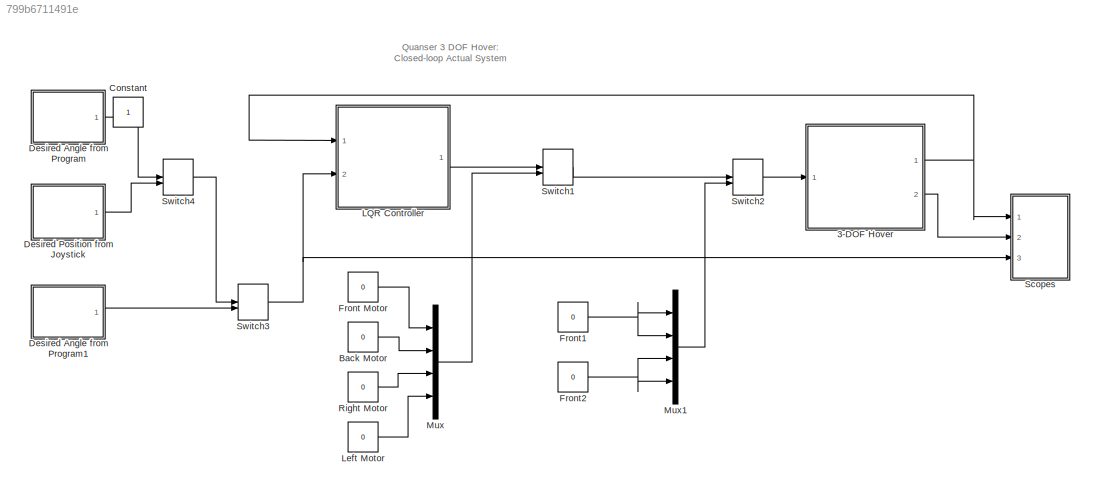
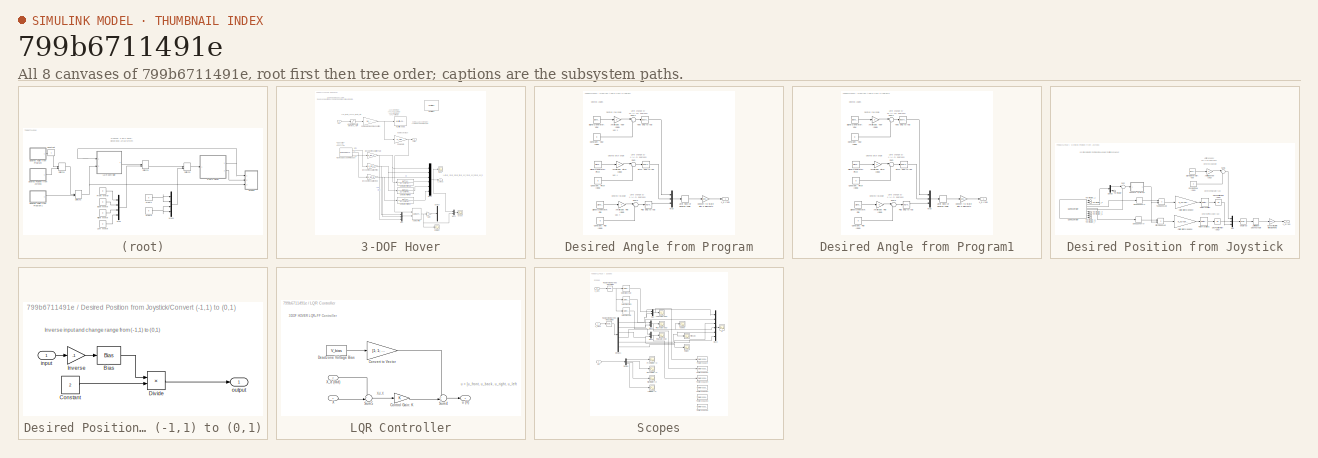
[diagram: thumbnail index - all 8 canvases of the model, root first then tree order]
MODEL slx_799b6711491e
KIND model
CONFIG AbsTol = auto
CONFIG FixedStep = 0.002
CONFIG MaxStep = auto
CONFIG MinStep = auto
CONFIG RelTol = 1e-3
CONFIG SampleTimeConstraint = Unconstrained
CONFIG Solver = ode1
CONFIG SolverMode = Auto
CONFIG SolverName = ode1
CONFIG StartTime = 0.0
CONFIG StopTime = inf
BLOCK [SubSystem] 3-DOF Hover
  Ports = [1, 2]
  RequestExecContextInheritance = off
  Variant = off
BLOCK [Gain] 3-DOF Hover/Cable Gain
  Gain = K_AMP
  Multiplication = Matrix(K*u)
BLOCK [Gain] 3-DOF Hover/Cable Gain Pre-Compensation
  Gain = 1 / K_AMP
  Multiplication = Matrix(K*u)
BLOCK [Demux] 3-DOF Hover/Demux
  Commented = on
  DisplayOption = bar
  Outputs = 6
  Ports = [1, 6]
BLOCK [TransferFcn] 3-DOF Hover/Derivative Filter: Pitch
  Denominator = [1 2*zetaf*wcf wcf^2]
  Numerator = [wcf^2 0]
BLOCK [TransferFcn] 3-DOF Hover/Derivative Filter: Roll
  Denominator = [1 2*zetaf*wcf wcf^2]
  Numerator = [wcf^2 0]
BLOCK [TransferFcn] 3-DOF Hover/Derivative Filter: Yaw
  Denominator = [1 2*zetaf*wcf wcf^2]
  Numerator = [wcf^2 0]
BLOCK [Gain] 3-DOF Hover/Encoder Resolution: Pitch
  Gain = K_EC_P
  OutDataTypeStr = Inherit: Inherit via internal rule
  ParamDataTypeStr = Inherit: Inherit via internal rule
  SaturateOnIntegerOverflow = off
BLOCK [Gain] 3-DOF Hover/Encoder Resolution: Roll 
  Gain = K_EC_R
  OutDataTypeStr = Inherit: Inherit via internal rule
  ParamDataTypeStr = Inherit: Inherit via internal rule
  SaturateOnIntegerOverflow = off
BLOCK [Gain] 3-DOF Hover/Encoder Resolution: Yaw
  Gain = K_EC_Y
  OutDataTypeStr = Inherit: Inherit via internal rule
  ParamDataTypeStr = Inherit: Inherit via internal rule
  SaturateOnIntegerOverflow = off
BLOCK [Gain] 3-DOF Hover/Gain
  Gain = -1
  OutDataTypeStr = Inherit: Inherit via internal rule
  ParamDataTypeStr = Inherit: Inherit via internal rule
  SaturateOnIntegerOverflow = off
BLOCK [Reference] 3-DOF Hover/HIL Initialize  REF=quarc_library/Data Acquisition/Generic/Configuration/HIL Initialize
  AttributesFormatString = %<object_name> (%<board_type>-%<board_number>)
  Ports = []
  SourceBlock = quarc_library/Data Acquisition/Generic/Configuration/HIL Initialize
  SourceType = HIL Initialize
  UserDataPersistent = on
BLOCK [Reference] 3-DOF Hover/HIL Read Encoder Timebase  REF=quarc_library/Data Acquisition/Generic/Timebases/HIL Read Encoder
Timebase
  AttributesFormatString = (%<object_name>)
  Ports = [0, 3]
  SourceBlock = quarc_library/Data Acquisition/Generic/Timebases/HIL Read Encoder\nTimebase
  SourceType = HIL Read Encoder Timebase
  UserDataPersistent = on
BLOCK [Reference] 3-DOF Hover/HIL Write Analog  REF=quarc_library/Data Acquisition/Generic/Immediate I//O/HIL Write Analog
  AttributesFormatString = (%<object_name>)
  Ports = [1]
  SourceBlock = quarc_library/Data Acquisition/Generic/Immediate I//O/HIL Write Analog
  SourceType = HIL Write Analog
  UserDataPersistent = on
BLOCK [Scope] 3-DOF Hover/Kalman
  Ports = [1]
  ScopeSpecificationString = Simulink.scopes.TimeScopeBlockCfg('CurrentConfiguration', extmgr.ConfigurationSet(extmgr.Configuration('Core','General UI',true),extmgr.Configuration('Core','Source UI',true),extmgr.Configuration('Sources','WiredSimulink',true,'DataLoggingVariableName','ScopeData2'),extmgr.Configuration('Visuals','Time Domain',true,'SerializedDisplays',{struct('MinYLimReal','-0.42066','MaxYLimReal','0.49175','YLab...<+1534ch>
BLOCK [Reference] 3-DOF Hover/Kalman Filter  REF=ctrlSharedLib/Kalman Filter
  Ports = [2, 1]
  SourceBlock = ctrlSharedLib/Kalman Filter
  SourceType = ctrlKalmanFilter
BLOCK [Mux] 3-DOF Hover/Mux
  DisplayOption = bar
  Inputs = 3
  Ports = [3, 1]
BLOCK [Mux] 3-DOF Hover/Mux1
  DisplayOption = bar
  Inputs = 6
  Ports = [6, 1]
BLOCK [Mux] 3-DOF Hover/Mux2
  DisplayOption = bar
  Inputs = 2
  Ports = [2, 1]
BLOCK [Scope] 3-DOF Hover/Real
  Ports = [1]
  ScopeSpecificationString = Simulink.scopes.TimeScopeBlockCfg('CurrentConfiguration', extmgr.ConfigurationSet(extmgr.Configuration('Core','General UI',true),extmgr.Configuration('Core','Source UI',true),extmgr.Configuration('Sources','WiredSimulink',true,'DataLoggingVariableName','ScopeData3'),extmgr.Configuration('Visuals','Time Domain',true,'SerializedDisplays',{struct('MinYLimReal','-0.35608','MaxYLimReal','0.56933','YLab...<+1526ch>
BLOCK [Scope] 3-DOF Hover/Scope
  Ports = [1]
  ScopeSpecificationString = Simulink.scopes.TimeScopeBlockCfg('CurrentConfiguration', extmgr.ConfigurationSet(extmgr.Configuration('Core','General UI',true),extmgr.Configuration('Core','Source UI',true),extmgr.Configuration('Sources','WiredSimulink',true,'DataLoggingVariableName','ScopeData1'),extmgr.Configuration('Visuals','Time Domain',true,'SerializedDisplays',{struct('MinYLimReal','-0.95534','MaxYLimReal','0.84381','YLab...<+1662ch>
BLOCK [Saturate] 3-DOF Hover/UPM Voltage Limit: 0 to VMAX_AMP
  InputPortMap = u0
  LowerLimit = 0
  Ports = [1, 1]
  UpperLimit = VMAX_AMP
BLOCK [Outport] 3-DOF Hover/Vm (V)
  IconDisplay = Port number
  Port = 2
BLOCK [Outport] 3-DOF Hover/X_meas
  IconDisplay = Port number
BLOCK [Inport] 3-DOF Hover/u (V)
  IconDisplay = Port number
BLOCK [Constant] Back Motor
  Value = 0
BLOCK [Constant] Constant
  IOType = siggen
BLOCK [SubSystem] Desired Angle from Program
  Ports = [0, 1]
  RequestExecContextInheritance = off
  Variant = off
BLOCK [Gain] Desired Angle from Program/Amplitude: Pitch (deg)
  Gain = 4
  OutDataTypeStr = Inherit: Inherit via internal rule
  ParamDataTypeStr = Inherit: Inherit via internal rule
  SaturateOnIntegerOverflow = off
BLOCK [Gain] Desired Angle from Program/Amplitude: Roll (deg)
  Gain = 4
  OutDataTypeStr = Inherit: Inherit via internal rule
  ParamDataTypeStr = Inherit: Inherit via internal rule
  SaturateOnIntegerOverflow = off
BLOCK [Gain] Desired Angle from Program/Amplitude: Yaw (deg)
  Gain = 5
  OutDataTypeStr = Inherit: Inherit via internal rule
  ParamDataTypeStr = Inherit: Inherit via internal rule
  SaturateOnIntegerOverflow = off
BLOCK [Constant] Desired Angle from Program/Constant: Pitch (deg)
  Value = 0
BLOCK [Constant] Desired Angle from Program/Constant: Roll (deg)
  Value = 0
BLOCK [Constant] Desired Angle from Program/Constant: Yaw (deg)
  Value = 0
BLOCK [Gain] Desired Angle from Program/Convert to State with 6 Elements
  Gain = [1 0 0; 0 1 0; 0 0 1; 0 0 0; 0 0 0; 0 0 0];
  Multiplication = Matrix(K*u)
  OutDataTypeStr = Inherit: Inherit via internal rule
  ParamDataTypeStr = Inherit: Inherit via internal rule
  SaturateOnIntegerOverflow = off
BLOCK [RateLimiter] Desired Angle from Program/Limit Rate of Desired Angle
  FallingSlewLimit = -CMD_RATE_LIMIT
  RisingSlewLimit = CMD_RATE_LIMIT
BLOCK [Mux] Desired Angle from Program/Mux
  DisplayOption = bar
  Inputs = 3
  Ports = [3, 1]
BLOCK [Reference] Desired Angle from Program/Pitch: deg to rad  REF=simulink_extras/Transformations/Degrees to
Radians
  Ports = [1, 1]
  SourceBlock = simulink_extras/Transformations/Degrees to\nRadians
  SourceType = DegreesToRadians
BLOCK [Reference] Desired Angle from Program/Roll: deg to rad  REF=simulink_extras/Transformations/Degrees to
Radians
  Ports = [1, 1]
  SourceBlock = simulink_extras/Transformations/Degrees to\nRadians
  SourceType = DegreesToRadians
BLOCK [SignalGenerator] Desired Angle from Program/Signal Generator: Pitch
  Frequency = 0.05
  Ports = [0, 1]
  WaveForm = square
BLOCK [SignalGenerator] Desired Angle from Program/Signal Generator: Roll
  Frequency = 0.05
  Ports = [0, 1]
  WaveForm = square
BLOCK [SignalGenerator] Desired Angle from Program/Signal Generator: Yaw
  Frequency = 0.05
  Ports = [0, 1]
  WaveForm = square
BLOCK [Sum] Desired Angle from Program/Sum
  IconShape = round
  InputSameDT = off
  Inputs = |++
  OutDataTypeStr = Inherit: Inherit via internal rule
  Ports = [2, 1]
  SaturateOnIntegerOverflow = off
BLOCK [Sum] Desired Angle from Program/Sum1
  IconShape = round
  InputSameDT = off
  Inputs = |++
  OutDataTypeStr = Inherit: Inherit via internal rule
  Ports = [2, 1]
  SaturateOnIntegerOverflow = off
BLOCK [Sum] Desired Angle from Program/Sum2
  IconShape = round
  InputSameDT = off
  Inputs = |++
  OutDataTypeStr = Inherit: Inherit via internal rule
  Ports = [2, 1]
  SaturateOnIntegerOverflow = off
BLOCK [Reference] Desired Angle from Program/Yaw: deg to rad  REF=simulink_extras/Transformations/Degrees to
Radians
  Ports = [1, 1]
  SourceBlock = simulink_extras/Transformations/Degrees to\nRadians
  SourceType = DegreesToRadians
BLOCK [Outport] Desired Angle from Program/x_d (rad)
  IconDisplay = Port number
BLOCK [SubSystem] Desired Angle from Program1
  Ports = [0, 1]
  RequestExecContextInheritance = off
  Variant = off
BLOCK [Gain] Desired Angle from Program1/Amplitude: Pitch (deg)
  Gain = 0
  OutDataTypeStr = Inherit: Inherit via internal rule
  ParamDataTypeStr = Inherit: Inherit via internal rule
  SaturateOnIntegerOverflow = off
BLOCK [Gain] Desired Angle from Program1/Amplitude: Roll (deg)
  Gain = 0
  OutDataTypeStr = Inherit: Inherit via internal rule
  ParamDataTypeStr = Inherit: Inherit via internal rule
  SaturateOnIntegerOverflow = off
BLOCK [Gain] Desired Angle from Program1/Amplitude: Yaw (deg)
  Gain = 0
  OutDataTypeStr = Inherit: Inherit via internal rule
  ParamDataTypeStr = Inherit: Inherit via internal rule
  SaturateOnIntegerOverflow = off
BLOCK [Constant] Desired Angle from Program1/Constant: Pitch (deg)
  Value = 0
BLOCK [Constant] Desired Angle from Program1/Constant: Roll (deg)
  Value = 0
BLOCK [Constant] Desired Angle from Program1/Constant: Yaw (deg)
  Value = 0
BLOCK [Gain] Desired Angle from Program1/Convert to State with 6 Elements
  Gain = [1 0 0; 0 1 0; 0 0 1; 0 0 0; 0 0 0; 0 0 0];
  Multiplication = Matrix(K*u)
  OutDataTypeStr = Inherit: Inherit via internal rule
  ParamDataTypeStr = Inherit: Inherit via internal rule
  SaturateOnIntegerOverflow = off
BLOCK [RateLimiter] Desired Angle from Program1/Limit Rate of Desired Angle
  FallingSlewLimit = -CMD_RATE_LIMIT
  RisingSlewLimit = CMD_RATE_LIMIT
BLOCK [Mux] Desired Angle from Program1/Mux
  DisplayOption = bar
  Inputs = 3
  Ports = [3, 1]
BLOCK [Reference] Desired Angle from Program1/Pitch: deg to rad  REF=simulink_extras/Transformations/Degrees to
Radians
  Ports = [1, 1]
  SourceBlock = simulink_extras/Transformations/Degrees to\nRadians
  SourceType = DegreesToRadians
BLOCK [Reference] Desired Angle from Program1/Roll: deg to rad  REF=simulink_extras/Transformations/Degrees to
Radians
  Ports = [1, 1]
  SourceBlock = simulink_extras/Transformations/Degrees to\nRadians
  SourceType = DegreesToRadians
BLOCK [SignalGenerator] Desired Angle from Program1/Signal Generator: Pitch
  Frequency = 0.1
  Ports = [0, 1]
  WaveForm = square
BLOCK [SignalGenerator] Desired Angle from Program1/Signal Generator: Roll
  Frequency = 0.1
  Ports = [0, 1]
  WaveForm = square
BLOCK [SignalGenerator] Desired Angle from Program1/Signal Generator: Yaw
  Frequency = 0.25
  Ports = [0, 1]
  WaveForm = square
BLOCK [Sum] Desired Angle from Program1/Sum
  IconShape = round
  InputSameDT = off
  Inputs = |++
  OutDataTypeStr = Inherit: Inherit via internal rule
  Ports = [2, 1]
  SaturateOnIntegerOverflow = off
BLOCK [Sum] Desired Angle from Program1/Sum1
  IconShape = round
  InputSameDT = off
  Inputs = |++
  OutDataTypeStr = Inherit: Inherit via internal rule
  Ports = [2, 1]
  SaturateOnIntegerOverflow = off
BLOCK [Sum] Desired Angle from Program1/Sum2
  IconShape = round
  InputSameDT = off
  Inputs = |++
  OutDataTypeStr = Inherit: Inherit via internal rule
  Ports = [2, 1]
  SaturateOnIntegerOverflow = off
BLOCK [Reference] Desired Angle from Program1/Yaw: deg to rad  REF=simulink_extras/Transformations/Degrees to
Radians
  Ports = [1, 1]
  SourceBlock = simulink_extras/Transformations/Degrees to\nRadians
  SourceType = DegreesToRadians
BLOCK [Outport] Desired Angle from Program1/x_d (rad)
  IconDisplay = Port number
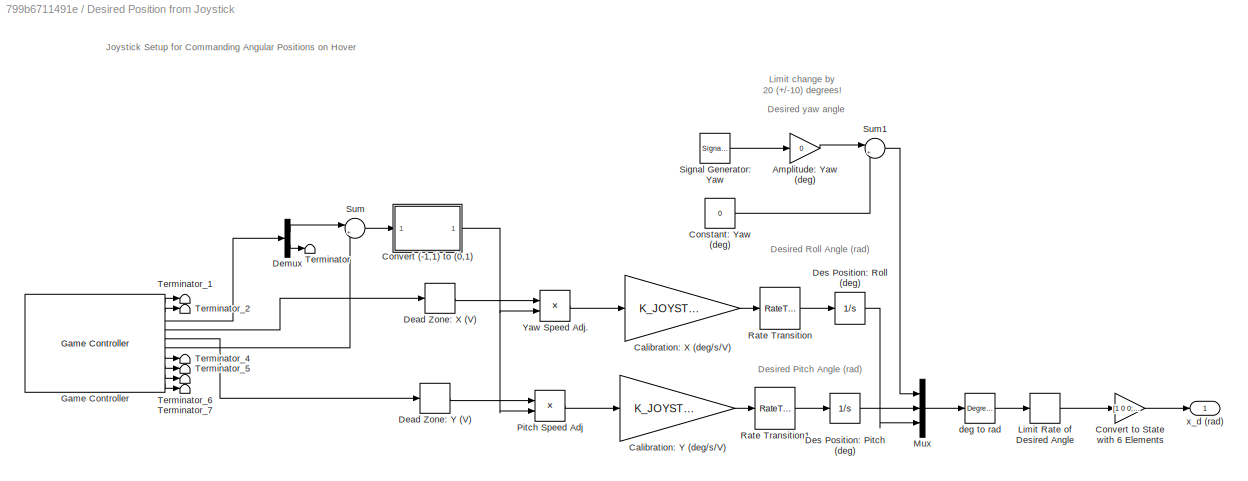
BLOCK [SubSystem] Desired Position from Joystick
  Ports = [0, 1]
  RequestExecContextInheritance = off
  Variant = off
BLOCK [Gain] Desired Position from Joystick/Amplitude: Yaw (deg)
  Gain = 0
  OutDataTypeStr = Inherit: Inherit via internal rule
  ParamDataTypeStr = Inherit: Inherit via internal rule
  SaturateOnIntegerOverflow = off
BLOCK [Gain] Desired Position from Joystick/Calibration: X (deg//s//V)
  Gain = K_JOYSTICK_X
  OutDataTypeStr = Inherit: Inherit via internal rule
  ParamDataTypeStr = Inherit: Inherit via internal rule
  SaturateOnIntegerOverflow = off
BLOCK [Gain] Desired Position from Joystick/Calibration: Y (deg//s//V)
  Gain = K_JOYSTICK_Y
  OutDataTypeStr = Inherit: Inherit via internal rule
  ParamDataTypeStr = Inherit: Inherit via internal rule
  SaturateOnIntegerOverflow = off
BLOCK [Constant] Desired Position from Joystick/Constant: Yaw (deg)
  Value = 0
BLOCK [SubSystem] Desired Position from Joystick/Convert (-1,1) to (0,1)
  Ports = [1, 1]
  RequestExecContextInheritance = off
  Variant = off
BLOCK [Bias] Desired Position from Joystick/Convert (-1,1) to (0,1)/Bias
  Bias = 1
  SaturateOnIntegerOverflow = off
BLOCK [Constant] Desired Position from Joystick/Convert (-1,1) to (0,1)/Constant
  Value = 2
BLOCK [Product] Desired Position from Joystick/Convert (-1,1) to (0,1)/Divide
  InputSameDT = off
  Inputs = */
  OutDataTypeStr = Inherit: Inherit via internal rule
  Ports = [2, 1]
  RndMeth = Floor
  SaturateOnIntegerOverflow = off
BLOCK [Gain] Desired Position from Joystick/Convert (-1,1) to (0,1)/Inverse
  Gain = -1
  OutDataTypeStr = Inherit: Inherit via internal rule
  ParamDataTypeStr = Inherit: Inherit via internal rule
  SaturateOnIntegerOverflow = off
BLOCK [Inport] Desired Position from Joystick/Convert (-1,1) to (0,1)/input
  IconDisplay = Port number
BLOCK [Outport] Desired Position from Joystick/Convert (-1,1) to (0,1)/output
  IconDisplay = Port number
BLOCK [Gain] Desired Position from Joystick/Convert to State with 6 Elements
  Gain = [1 0 0; 0 1 0; 0 0 1; 0 0 0; 0 0 0; 0 0 0];
  Multiplication = Matrix(K*u)
  OutDataTypeStr = Inherit: Inherit via internal rule
  ParamDataTypeStr = Inherit: Inherit via internal rule
  SaturateOnIntegerOverflow = off
BLOCK [DeadZone] Desired Position from Joystick/Dead Zone: X (V)
  LowerValue = -JOYSTICK_X_DZ
  UpperValue = JOYSTICK_X_DZ
BLOCK [DeadZone] Desired Position from Joystick/Dead Zone: Y (V)
  LowerValue = -JOYSTICK_Y_DZ
  UpperValue = JOYSTICK_Y_DZ
BLOCK [Demux] Desired Position from Joystick/Demux
  DisplayOption = bar
  Outputs = 2
  Ports = [1, 2]
BLOCK [Integrator] Desired Position from Joystick/Des Position: Pitch (deg)
  LimitOutput = on
  LowerSaturationLimit = INT_JOYSTICK_SAT_LOWER
  Ports = [1, 1]
  UpperSaturationLimit = INT_JOYSTICK_SAT_UPPER
BLOCK [Integrator] Desired Position from Joystick/Des Position: Roll (deg)
  LimitOutput = on
  LowerSaturationLimit = INT_JOYSTICK_SAT_LOWER
  Ports = [1, 1]
  UpperSaturationLimit = INT_JOYSTICK_SAT_UPPER
BLOCK [Reference] Desired Position from Joystick/Game Controller  REF=quarc_library/Devices/Peripherals/Target/Game Controller
  Ports = [0, 10]
  SourceBlock = quarc_library/Devices/Peripherals/Target/Game Controller
  SourceType = Game Controller
BLOCK [RateLimiter] Desired Position from Joystick/Limit Rate of Desired Angle
  FallingSlewLimit = -CMD_RATE_LIMIT
  RisingSlewLimit = CMD_RATE_LIMIT
BLOCK [Mux] Desired Position from Joystick/Mux
  DisplayOption = bar
  Inputs = 3
  Ports = [3, 1]
BLOCK [Product] Desired Position from Joystick/Pitch Speed Adj
  InputSameDT = off
  OutDataTypeStr = Inherit: Inherit via internal rule
  Ports = [2, 1]
  SaturateOnIntegerOverflow = off
BLOCK [RateTransition] Desired Position from Joystick/Rate Transition
BLOCK [RateTransition] Desired Position from Joystick/Rate Transition1
BLOCK [SignalGenerator] Desired Position from Joystick/Signal Generator: Yaw
  Frequency = 0.04
  Ports = [0, 1]
  WaveForm = square
BLOCK [Sum] Desired Position from Joystick/Sum
  IconShape = round
  InputSameDT = off
  Inputs = |++
  OutDataTypeStr = Inherit: Inherit via internal rule
  Ports = [2, 1]
  SaturateOnIntegerOverflow = off
BLOCK [Sum] Desired Position from Joystick/Sum1
  IconShape = round
  InputSameDT = off
  Inputs = |++
  OutDataTypeStr = Inherit: Inherit via internal rule
  Ports = [2, 1]
  SaturateOnIntegerOverflow = off
BLOCK [Terminator] Desired Position from Joystick/Terminator
BLOCK [Terminator] Desired Position from Joystick/Terminator_1
BLOCK [Terminator] Desired Position from Joystick/Terminator_2
BLOCK [Terminator] Desired Position from Joystick/Terminator_4
BLOCK [Terminator] Desired Position from Joystick/Terminator_5
BLOCK [Terminator] Desired Position from Joystick/Terminator_6
BLOCK [Terminator] Desired Position from Joystick/Terminator_7
BLOCK [Product] Desired Position from Joystick/Yaw Speed Adj.
  InputSameDT = off
  OutDataTypeStr = Inherit: Inherit via internal rule
  Ports = [2, 1]
  SaturateOnIntegerOverflow = off
BLOCK [Reference] Desired Position from Joystick/deg to rad  REF=simulink_extras/Transformations/Degrees to
Radians
  Ports = [1, 1]
  SourceBlock = simulink_extras/Transformations/Degrees to\nRadians
  SourceType = DegreesToRadians
BLOCK [Outport] Desired Position from Joystick/x_d (rad)
  IconDisplay = Port number
BLOCK [Constant] Front Motor
  Value = 0
BLOCK [Constant] Front1
  Value = 0
BLOCK [Constant] Front2
  Value = 0
BLOCK [SubSystem] LQR Controller
  Ports = [2, 1]
  RequestExecContextInheritance = off
  Variant = off
BLOCK [Gain] LQR Controller/Control Gain: K
  Gain = K
  Multiplication = Matrix(K*u)
  OutDataTypeStr = Inherit: Inherit via internal rule
  ParamDataTypeStr = Inherit: Inherit via internal rule
  SaturateOnIntegerOverflow = off
BLOCK [Gain] LQR Controller/Convert to Vector
  Gain = [1; 1; 1; 1]
  Multiplication = Matrix(K*u)
  OutDataTypeStr = Inherit: Inherit via internal rule
  ParamDataTypeStr = Inherit: Inherit via internal rule
  SaturateOnIntegerOverflow = off
BLOCK [Constant] LQR Controller/Deadzone Voltage Bias
  Value = V_bias
BLOCK [Sum] LQR Controller/Sum4
  IconShape = round
  InputSameDT = off
  Inputs = ++|
  OutDataTypeStr = Inherit: Inherit via internal rule
  Ports = [2, 1]
  SaturateOnIntegerOverflow = off
BLOCK [Sum] LQR Controller/Sum5
  IconShape = round
  InputSameDT = off
  Inputs = +-|
  OutDataTypeStr = Inherit: Inherit via internal rule
  Ports = [2, 1]
  SaturateOnIntegerOverflow = off
BLOCK [Inport] LQR Controller/X
  IconDisplay = Port number
BLOCK [Inport] LQR Controller/X_d (rad)
  IconDisplay = Port number
  Port = 2
BLOCK [Outport] LQR Controller/u (V)
  IconDisplay = Port number
BLOCK [Constant] Left Motor
  Value = 0
BLOCK [Mux] Mux
  DisplayOption = bar
  Ports = [4, 1]
BLOCK [Mux] Mux1
  DisplayOption = bar
  Ports = [4, 1]
BLOCK [Constant] Right Motor
  Value = 0
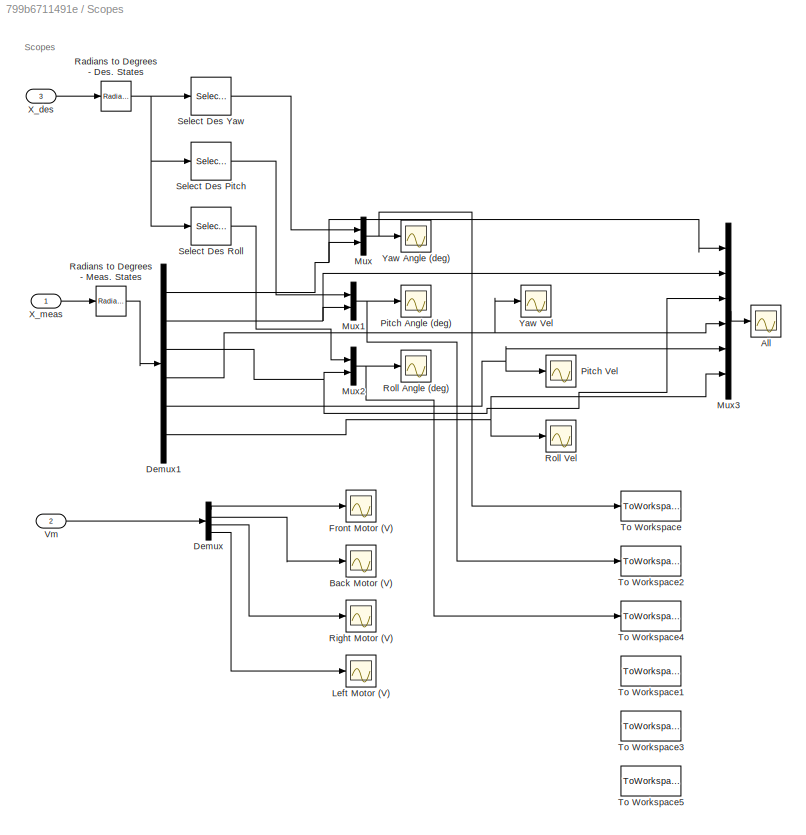
BLOCK [SubSystem] Scopes
  Ports = [3]
  RequestExecContextInheritance = off
  Variant = off
BLOCK [Scope] Scopes/All
  Ports = [1]
  ScopeSpecificationString = Simulink.scopes.TimeScopeBlockCfg('CurrentConfiguration', extmgr.ConfigurationSet(extmgr.Configuration('Core','General UI',true),extmgr.Configuration('Core','Source UI',true),extmgr.Configuration('Sources','WiredSimulink',true,'DataLogging',true,'DataLoggingVariableName','ScopeData4','DataLoggingMaxPoints','10000','DataLoggingLimitDataPoints',true,'DataLoggingSaveFormat','Array','DataLoggingDecima...<+1826ch>
BLOCK [Scope] Scopes/Back Motor (V)
  Ports = [1]
  ScopeSpecificationString = Simulink.scopes.TimeScopeBlockCfg('CurrentConfiguration', extmgr.ConfigurationSet(extmgr.Configuration('Core','General UI',true),extmgr.Configuration('Core','Source UI',true),extmgr.Configuration('Sources','WiredSimulink',true,'DataLogging',true,'DataLoggingVariableName','data_Vb','DataLoggingMaxPoints','10000','DataLoggingLimitDataPoints',true,'DataLoggingSaveFormat','Array','DataLoggingDecimatio...<+1739ch>
BLOCK [Demux] Scopes/Demux
  DisplayOption = bar
  Ports = [1, 4]
BLOCK [Demux] Scopes/Demux1
  DisplayOption = bar
  Outputs = 6
  Ports = [1, 6]
BLOCK [Scope] Scopes/Front Motor (V)
  Ports = [1]
  ScopeSpecificationString = Simulink.scopes.TimeScopeBlockCfg('CurrentConfiguration', extmgr.ConfigurationSet(extmgr.Configuration('Core','General UI',true),extmgr.Configuration('Core','Source UI',true),extmgr.Configuration('Sources','WiredSimulink',true,'DataLogging',true,'DataLoggingVariableName','data_Vf','DataLoggingMaxPoints','10000','DataLoggingLimitDataPoints',true,'DataLoggingSaveFormat','Array','DataLoggingDecimatio...<+1738ch>
BLOCK [Scope] Scopes/Left Motor (V)
  Ports = [1]
  ScopeSpecificationString = Simulink.scopes.TimeScopeBlockCfg('CurrentConfiguration', extmgr.ConfigurationSet(extmgr.Configuration('Core','General UI',true),extmgr.Configuration('Core','Source UI',true),extmgr.Configuration('Sources','WiredSimulink',true,'DataLogging',true,'DataLoggingVariableName','data_Vl','DataLoggingMaxPoints','10000','DataLoggingLimitDataPoints',true,'DataLoggingSaveFormat','Array','DataLoggingDecimatio...<+1784ch>
BLOCK [Mux] Scopes/Mux
  DisplayOption = bar
  Inputs = 2
  Ports = [2, 1]
BLOCK [Mux] Scopes/Mux1
  DisplayOption = bar
  Inputs = 2
  Ports = [2, 1]
BLOCK [Mux] Scopes/Mux2
  DisplayOption = bar
  Inputs = 2
  Ports = [2, 1]
BLOCK [Mux] Scopes/Mux3
  DisplayOption = bar
  Inputs = 6
  Ports = [6, 1]
BLOCK [Scope] Scopes/Pitch Angle (deg)
  Ports = [1]
  ScopeSpecificationString = Simulink.scopes.TimeScopeBlockCfg('CurrentConfiguration', extmgr.ConfigurationSet(extmgr.Configuration('Core','General UI',true),extmgr.Configuration('Core','Source UI',true),extmgr.Configuration('Sources','WiredSimulink',true,'DataLogging',true,'DataLoggingVariableName','data_pitch','DataLoggingMaxPoints','10000','DataLoggingLimitDataPoints',true,'DataLoggingSaveFormat','Array','DataLoggingDecima...<+1856ch>
BLOCK [Scope] Scopes/Pitch Vel
  Ports = [1]
  ScopeSpecificationString = Simulink.scopes.TimeScopeBlockCfg('CurrentConfiguration', extmgr.ConfigurationSet(extmgr.Configuration('Core','General UI',true),extmgr.Configuration('Core','Source UI',true),extmgr.Configuration('Sources','WiredSimulink',true,'DataLogging',true,'DataLoggingVariableName','ScopeData1','DataLoggingMaxPoints','10000','DataLoggingLimitDataPoints',true,'DataLoggingSaveFormat','Array','DataLoggingDecima...<+1817ch>
BLOCK [Reference] Scopes/Radians to Degrees - Des. States  REF=simulink_extras/Transformations/Radians
to Degrees
  Ports = [1, 1]
  SourceBlock = simulink_extras/Transformations/Radians\nto Degrees
  SourceType = RadiansToDegrees
BLOCK [Reference] Scopes/Radians to Degrees - Meas. States  REF=simulink_extras/Transformations/Radians
to Degrees
  Ports = [1, 1]
  SourceBlock = simulink_extras/Transformations/Radians\nto Degrees
  SourceType = RadiansToDegrees
BLOCK [Scope] Scopes/Right Motor (V)
  Ports = [1]
  ScopeSpecificationString = Simulink.scopes.TimeScopeBlockCfg('CurrentConfiguration', extmgr.ConfigurationSet(extmgr.Configuration('Core','General UI',true),extmgr.Configuration('Core','Source UI',true),extmgr.Configuration('Sources','WiredSimulink',true,'DataLogging',true,'DataLoggingVariableName','data_Vr','DataLoggingMaxPoints','10000','DataLoggingLimitDataPoints',true,'DataLoggingSaveFormat','Array','DataLoggingDecimatio...<+1786ch>
BLOCK [Scope] Scopes/Roll Angle (deg)
  Ports = [1]
  ScopeSpecificationString = Simulink.scopes.TimeScopeBlockCfg('CurrentConfiguration', extmgr.ConfigurationSet(extmgr.Configuration('Core','General UI',true),extmgr.Configuration('Core','Source UI',true),extmgr.Configuration('Sources','WiredSimulink',true,'DataLogging',true,'DataLoggingVariableName','data_roll','DataLoggingMaxPoints','10000','DataLoggingLimitDataPoints',true,'DataLoggingSaveFormat','Array','DataLoggingDecimat...<+1859ch>
BLOCK [Scope] Scopes/Roll Vel
  Ports = [1]
  ScopeSpecificationString = Simulink.scopes.TimeScopeBlockCfg('CurrentConfiguration', extmgr.ConfigurationSet(extmgr.Configuration('Core','General UI',true),extmgr.Configuration('Core','Source UI',true),extmgr.Configuration('Sources','WiredSimulink',true,'DataLogging',true,'DataLoggingVariableName','ScopeData2','DataLoggingMaxPoints','10000','DataLoggingLimitDataPoints',true,'DataLoggingSaveFormat','Array','DataLoggingDecima...<+1774ch>
BLOCK [Selector] Scopes/Select Des Pitch
  IndexOptions = Index vector (dialog)
  Indices = 2
  InputPortWidth = 6
  OutputSizes = 1
  Ports = [1, 1]
BLOCK [Selector] Scopes/Select Des Roll
  IndexOptions = Index vector (dialog)
  Indices = 3
  InputPortWidth = 6
  OutputSizes = 1
  Ports = [1, 1]
BLOCK [Selector] Scopes/Select Des Yaw
  IndexOptions = Index vector (dialog)
  Indices = 1
  InputPortWidth = 6
  OutputSizes = 1
  Ports = [1, 1]
BLOCK [ToWorkspace] Scopes/To Workspace
  FixptAsFi = on
  MaxDataPoints = inf
  Ports = [1]
  SampleTime = -1
  Save2DSignal = 2-D array (concatenate along first dimension)
  VariableName = Yaw_Angle
BLOCK [ToWorkspace] Scopes/To Workspace1
  FixptAsFi = on
  MaxDataPoints = inf
  Ports = [1]
  SampleTime = -1
  Save2DSignal = 2-D array (concatenate along first dimension)
  VariableName = Yaw_Velocity
BLOCK [ToWorkspace] Scopes/To Workspace2
  FixptAsFi = on
  MaxDataPoints = inf
  Ports = [1]
  SampleTime = -1
  Save2DSignal = 2-D array (concatenate along first dimension)
  VariableName = Pitch_Angle
BLOCK [ToWorkspace] Scopes/To Workspace3
  FixptAsFi = on
  MaxDataPoints = inf
  Ports = [1]
  SampleTime = -1
  Save2DSignal = 2-D array (concatenate along first dimension)
  VariableName = Pitch_Velocity
BLOCK [ToWorkspace] Scopes/To Workspace4
  FixptAsFi = on
  MaxDataPoints = inf
  Ports = [1]
  SampleTime = -1
  Save2DSignal = 2-D array (concatenate along first dimension)
  VariableName = Roll_Angle
BLOCK [ToWorkspace] Scopes/To Workspace5
  FixptAsFi = on
  MaxDataPoints = inf
  Ports = [1]
  SampleTime = -1
  Save2DSignal = 2-D array (concatenate along first dimension)
  VariableName = Rol_Velocity
BLOCK [Inport] Scopes/Vm
  IconDisplay = Port number
  Port = 2
BLOCK [Inport] Scopes/X_des
  IconDisplay = Port number
  Port = 3
BLOCK [Inport] Scopes/X_meas
  IconDisplay = Port number
BLOCK [Scope] Scopes/Yaw Angle (deg)
  Ports = [1]
  ScopeSpecificationString = Simulink.scopes.TimeScopeBlockCfg('CurrentConfiguration', extmgr.ConfigurationSet(extmgr.Configuration('Core','General UI',true),extmgr.Configuration('Core','Source UI',true),extmgr.Configuration('Sources','WiredSimulink',true,'DataLogging',true,'DataLoggingVariableName','data_yaw','DataLoggingMaxPoints','10000','DataLoggingLimitDataPoints',true,'DataLoggingSaveFormat','Array','DataLoggingDecimati...<+1854ch>
BLOCK [Scope] Scopes/Yaw Vel
  Ports = [1]
  ScopeSpecificationString = Simulink.scopes.TimeScopeBlockCfg('CurrentConfiguration', extmgr.ConfigurationSet(extmgr.Configuration('Core','General UI',true),extmgr.Configuration('Core','Source UI',true),extmgr.Configuration('Sources','WiredSimulink',true,'DataLogging',true,'DataLoggingVariableName','ScopeData3','DataLoggingMaxPoints','10000','DataLoggingLimitDataPoints',true,'DataLoggingSaveFormat','Array','DataLoggingDecima...<+1741ch>
BLOCK [ManualSwitch] Switch1
BLOCK [ManualSwitch] Switch2
BLOCK [ManualSwitch] Switch3
BLOCK [ManualSwitch] Switch4
ANNOTATION (root): Quanser 3 DOF Hover: Closed-loop Actual System
ANNOTATION 3-DOF Hover: 3DOF HOVER Subsystem Reads angles from encoder and applied voltage to motors.
ANNOTATION 3-DOF Hover: A0 #0 = front motor A0 #1 = back motor A0 #3 = right motor A0 #2 = left motor
ANNOTATION 3-DOF Hover: Ch #0 = pitch Ch #1 = roll Ch #2 = yaw
ANNOTATION 3-DOF Hover: Motor Input Voltage
ANNOTATION 3-DOF Hover: Note: [0,1,3,2] used to match control signal order [uf,ub,ur,ul]
ANNOTATION 3-DOF Hover: pitch
ANNOTATION 3-DOF Hover: roll
ANNOTATION 3-DOF Hover: u = [u_front, u_back, u_right, u_left]
ANNOTATION 3-DOF Hover: x = [theta_y, theta_p, theta_r, theta_dot_y, theta_dot_p, theta_dot_r, ]
ANNOTATION 3-DOF Hover: yaw
ANNOTATION Desired Angle from Program: Desired Angles
ANNOTATION Desired Angle from Program: Desired pitch angle
ANNOTATION Desired Angle from Program: Desired roll angle
ANNOTATION Desired Angle from Program: Desired yaw angle
ANNOTATION Desired Angle from Program: Limit change by 20 (+/-10) degrees!
ANNOTATION Desired Angle from Program: Limit change by 4 (+/-2) degrees!
ANNOTATION Desired Angle from Program: was 4
ANNOTATION Desired Angle from Program: was 5
ANNOTATION Desired Angle from Program1: Desired Angles
ANNOTATION Desired Angle from Program1: Desired pitch angle
ANNOTATION Desired Angle from Program1: Desired roll angle
ANNOTATION Desired Angle from Program1: Desired yaw angle
ANNOTATION Desired Angle from Program1: Limit change by 20 (+/-10) degrees!
ANNOTATION Desired Angle from Program1: Limit change by 4 (+/-2) degrees!
ANNOTATION Desired Position from Joystick: Desired Pitch Angle (rad)
ANNOTATION Desired Position from Joystick: Desired Roll Angle (rad)
ANNOTATION Desired Position from Joystick: Desired yaw angle
ANNOTATION Desired Position from Joystick: Joystick Setup for Commanding Angular Positions on Hover
ANNOTATION Desired Position from Joystick: Limit change by 20 (+/-10) degrees!
ANNOTATION Desired Position from Joystick/Convert (-1,1) to (0,1): Inverse input and change range from (-1,1) to (0,1)
ANNOTATION LQR Controller: 3DOF HOVER LQR+FF Controller
ANNOTATION LQR Controller: Xd-X
ANNOTATION LQR Controller: u = [u_front, u_back, u_right, u_left
ANNOTATION Scopes: Scopes
NET 3-DOF Hover/Cable Gain Pre-Compensation:1 -> 3-DOF Hover/Cable Gain:1, 3-DOF Hover/HIL Write Analog:1
NET 3-DOF Hover/Cable Gain:1 -> 3-DOF Hover/Kalman Filter:1, 3-DOF Hover/Vm (V):1
LINE 3-DOF Hover/Derivative Filter: Pitch:1 -> 3-DOF Hover/Mux1:5
LINE 3-DOF Hover/Derivative Filter: Roll:1 -> 3-DOF Hover/Mux1:6
LINE 3-DOF Hover/Derivative Filter: Yaw:1 -> 3-DOF Hover/Mux1:4
NET 3-DOF Hover/Encoder Resolution: Pitch:1 -> 3-DOF Hover/Derivative Filter: Pitch:1, 3-DOF Hover/Mux1:2, 3-DOF Hover/Mux:1
NET 3-DOF Hover/Encoder Resolution: Roll :1 -> 3-DOF Hover/Derivative Filter: Roll:1, 3-DOF Hover/Mux1:3, 3-DOF Hover/Mux:2
NET 3-DOF Hover/Encoder Resolution: Yaw:1 -> 3-DOF Hover/Derivative Filter: Yaw:1, 3-DOF Hover/Mux1:1, 3-DOF Hover/Mux:3
LINE 3-DOF Hover/Gain:1 -> 3-DOF Hover/Demux:1
LINE 3-DOF Hover/HIL Read Encoder Timebase:1 -> 3-DOF Hover/Encoder Resolution: Pitch:1
LINE 3-DOF Hover/HIL Read Encoder Timebase:2 -> 3-DOF Hover/Encoder Resolution: Roll :1
LINE 3-DOF Hover/HIL Read Encoder Timebase:3 -> 3-DOF Hover/Encoder Resolution: Yaw:1
NET 3-DOF Hover/Kalman Filter:1 -> 3-DOF Hover/Gain:1, 3-DOF Hover/Kalman:1, 3-DOF Hover/Mux2:2
NET 3-DOF Hover/Mux1:1 -> 3-DOF Hover/Mux2:1, 3-DOF Hover/Real:1, 3-DOF Hover/X_meas:1
LINE 3-DOF Hover/Mux2:1 -> 3-DOF Hover/Scope:1
LINE 3-DOF Hover/Mux:1 -> 3-DOF Hover/Kalman Filter:2
LINE 3-DOF Hover/UPM Voltage Limit: 0 to VMAX_AMP:1 -> 3-DOF Hover/Cable Gain Pre-Compensation:1
LINE 3-DOF Hover/u (V):1 -> 3-DOF Hover/UPM Voltage Limit: 0 to VMAX_AMP:1
NET 3-DOF Hover:1 -> LQR Controller:1, Scopes:1
LINE 3-DOF Hover:2 -> Scopes:2
LINE Back Motor:1 -> Mux:2
LINE Desired Angle from Program/Amplitude: Pitch (deg):1 -> Desired Angle from Program/Sum:1
LINE Desired Angle from Program/Amplitude: Roll (deg):1 -> Desired Angle from Program/Sum2:1
LINE Desired Angle from Program/Amplitude: Yaw (deg):1 -> Desired Angle from Program/Sum1:1
LINE Desired Angle from Program/Constant: Pitch (deg):1 -> Desired Angle from Program/Sum:2
LINE Desired Angle from Program/Constant: Roll (deg):1 -> Desired Angle from Program/Sum2:2
LINE Desired Angle from Program/Constant: Yaw (deg):1 -> Desired Angle from Program/Sum1:2
LINE Desired Angle from Program/Convert to State with 6 Elements:1 -> Desired Angle from Program/x_d (rad):1
LINE Desired Angle from Program/Limit Rate of Desired Angle:1 -> Desired Angle from Program/Convert to State with 6 Elements:1
LINE Desired Angle from Program/Mux:1 -> Desired Angle from Program/Limit Rate of Desired Angle:1
LINE Desired Angle from Program/Pitch: deg to rad:1 -> Desired Angle from Program/Mux:2
LINE Desired Angle from Program/Roll: deg to rad:1 -> Desired Angle from Program/Mux:3
LINE Desired Angle from Program/Signal Generator: Pitch:1 -> Desired Angle from Program/Amplitude: Pitch (deg):1
LINE Desired Angle from Program/Signal Generator: Roll:1 -> Desired Angle from Program/Amplitude: Roll (deg):1
LINE Desired Angle from Program/Signal Generator: Yaw:1 -> Desired Angle from Program/Amplitude: Yaw (deg):1
LINE Desired Angle from Program/Sum1:1 -> Desired Angle from Program/Yaw: deg to rad:1
LINE Desired Angle from Program/Sum2:1 -> Desired Angle from Program/Roll: deg to rad:1
LINE Desired Angle from Program/Sum:1 -> Desired Angle from Program/Pitch: deg to rad:1
LINE Desired Angle from Program/Yaw: deg to rad:1 -> Desired Angle from Program/Mux:1
LINE Desired Angle from Program1/Amplitude: Pitch (deg):1 -> Desired Angle from Program1/Sum:1
LINE Desired Angle from Program1/Amplitude: Roll (deg):1 -> Desired Angle from Program1/Sum2:1
LINE Desired Angle from Program1/Amplitude: Yaw (deg):1 -> Desired Angle from Program1/Sum1:1
LINE Desired Angle from Program1/Constant: Pitch (deg):1 -> Desired Angle from Program1/Sum:2
LINE Desired Angle from Program1/Constant: Roll (deg):1 -> Desired Angle from Program1/Sum2:2
LINE Desired Angle from Program1/Constant: Yaw (deg):1 -> Desired Angle from Program1/Sum1:2
LINE Desired Angle from Program1/Convert to State with 6 Elements:1 -> Desired Angle from Program1/x_d (rad):1
LINE Desired Angle from Program1/Limit Rate of Desired Angle:1 -> Desired Angle from Program1/Convert to State with 6 Elements:1
LINE Desired Angle from Program1/Mux:1 -> Desired Angle from Program1/Limit Rate of Desired Angle:1
LINE Desired Angle from Program1/Pitch: deg to rad:1 -> Desired Angle from Program1/Mux:2
LINE Desired Angle from Program1/Roll: deg to rad:1 -> Desired Angle from Program1/Mux:3
LINE Desired Angle from Program1/Signal Generator: Pitch:1 -> Desired Angle from Program1/Amplitude: Pitch (deg):1
LINE Desired Angle from Program1/Signal Generator: Roll:1 -> Desired Angle from Program1/Amplitude: Roll (deg):1
LINE Desired Angle from Program1/Signal Generator: Yaw:1 -> Desired Angle from Program1/Amplitude: Yaw (deg):1
LINE Desired Angle from Program1/Sum1:1 -> Desired Angle from Program1/Yaw: deg to rad:1
LINE Desired Angle from Program1/Sum2:1 -> Desired Angle from Program1/Roll: deg to rad:1
LINE Desired Angle from Program1/Sum:1 -> Desired Angle from Program1/Pitch: deg to rad:1
LINE Desired Angle from Program1/Yaw: deg to rad:1 -> Desired Angle from Program1/Mux:1
LINE Desired Angle from Program1:1 -> Switch3:2
LINE Desired Angle from Program:1 -> Switch4:1
LINE Desired Position from Joystick/Amplitude: Yaw (deg):1 -> Desired Position from Joystick/Sum1:1
LINE Desired Position from Joystick/Calibration: X (deg//s//V):1 -> Desired Position from Joystick/Rate Transition:1
LINE Desired Position from Joystick/Calibration: Y (deg//s//V):1 -> Desired Position from Joystick/Rate Transition1:1
LINE Desired Position from Joystick/Constant: Yaw (deg):1 -> Desired Position from Joystick/Sum1:2
LINE Desired Position from Joystick/Convert (-1,1) to (0,1)/Bias:1 -> Desired Position from Joystick/Convert (-1,1) to (0,1)/Divide:1
LINE Desired Position from Joystick/Convert (-1,1) to (0,1)/Constant:1 -> Desired Position from Joystick/Convert (-1,1) to (0,1)/Divide:2
LINE Desired Position from Joystick/Convert (-1,1) to (0,1)/Divide:1 -> Desired Position from Joystick/Convert (-1,1) to (0,1)/output:1
LINE Desired Position from Joystick/Convert (-1,1) to (0,1)/Inverse:1 -> Desired Position from Joystick/Convert (-1,1) to (0,1)/Bias:1
LINE Desired Position from Joystick/Convert (-1,1) to (0,1)/input:1 -> Desired Position from Joystick/Convert (-1,1) to (0,1)/Inverse:1
NET Desired Position from Joystick/Convert (-1,1) to (0,1):1 -> Desired Position from Joystick/Pitch Speed Adj:2, Desired Position from Joystick/Yaw Speed Adj.:2
LINE Desired Position from Joystick/Convert to State with 6 Elements:1 -> Desired Position from Joystick/x_d (rad):1
LINE Desired Position from Joystick/Dead Zone: X (V):1 -> Desired Position from Joystick/Yaw Speed Adj.:1
LINE Desired Position from Joystick/Dead Zone: Y (V):1 -> Desired Position from Joystick/Pitch Speed Adj:1
LINE Desired Position from Joystick/Demux:1 -> Desired Position from Joystick/Sum:1
LINE Desired Position from Joystick/Demux:2 -> Desired Position from Joystick/Terminator:1
LINE Desired Position from Joystick/Des Position: Pitch (deg):1 -> Desired Position from Joystick/Mux:2
LINE Desired Position from Joystick/Des Position: Roll (deg):1 -> Desired Position from Joystick/Mux:3
LINE Desired Position from Joystick/Game Controller:1 -> Desired Position from Joystick/Terminator_1:1
LINE Desired Position from Joystick/Game Controller:10 -> Desired Position from Joystick/Terminator_7:1
LINE Desired Position from Joystick/Game Controller:2 -> Desired Position from Joystick/Terminator_2:1
LINE Desired Position from Joystick/Game Controller:3 -> Desired Position from Joystick/Demux:1
LINE Desired Position from Joystick/Game Controller:4 -> Desired Position from Joystick/Dead Zone: X (V):1
LINE Desired Position from Joystick/Game Controller:5 -> Desired Position from Joystick/Dead Zone: Y (V):1
LINE Desired Position from Joystick/Game Controller:6 -> Desired Position from Joystick/Sum:2
LINE Desired Position from Joystick/Game Controller:7 -> Desired Position from Joystick/Terminator_4:1
LINE Desired Position from Joystick/Game Controller:8 -> Desired Position from Joystick/Terminator_5:1
LINE Desired Position from Joystick/Game Controller:9 -> Desired Position from Joystick/Terminator_6:1
LINE Desired Position from Joystick/Limit Rate of Desired Angle:1 -> Desired Position from Joystick/Convert to State with 6 Elements:1
LINE Desired Position from Joystick/Mux:1 -> Desired Position from Joystick/deg to rad:1
LINE Desired Position from Joystick/Pitch Speed Adj:1 -> Desired Position from Joystick/Calibration: Y (deg//s//V):1
LINE Desired Position from Joystick/Rate Transition1:1 -> Desired Position from Joystick/Des Position: Pitch (deg):1
LINE Desired Position from Joystick/Rate Transition:1 -> Desired Position from Joystick/Des Position: Roll (deg):1
LINE Desired Position from Joystick/Signal Generator: Yaw:1 -> Desired Position from Joystick/Amplitude: Yaw (deg):1
LINE Desired Position from Joystick/Sum1:1 -> Desired Position from Joystick/Mux:1
LINE Desired Position from Joystick/Sum:1 -> Desired Position from Joystick/Convert (-1,1) to (0,1):1
LINE Desired Position from Joystick/Yaw Speed Adj.:1 -> Desired Position from Joystick/Calibration: X (deg//s//V):1
LINE Desired Position from Joystick/deg to rad:1 -> Desired Position from Joystick/Limit Rate of Desired Angle:1
LINE Desired Position from Joystick:1 -> Switch4:2
LINE Front Motor:1 -> Mux:1
NET Front1:1 -> Mux1:1, Mux1:2
NET Front2:1 -> Mux1:3, Mux1:4
LINE LQR Controller/Control Gain: K:1 -> LQR Controller/Sum4:2
LINE LQR Controller/Convert to Vector:1 -> LQR Controller/Sum4:1
LINE LQR Controller/Deadzone Voltage Bias:1 -> LQR Controller/Convert to Vector:1
LINE LQR Controller/Sum4:1 -> LQR Controller/u (V):1
LINE LQR Controller/Sum5:1 -> LQR Controller/Control Gain: K:1
LINE LQR Controller/X:1 -> LQR Controller/Sum5:2
LINE LQR Controller/X_d (rad):1 -> LQR Controller/Sum5:1
LINE LQR Controller:1 -> Switch1:1
LINE Left Motor:1 -> Mux:4
LINE Mux1:1 -> Switch2:2
LINE Mux:1 -> Switch1:2
LINE Right Motor:1 -> Mux:3
NET Scopes/Demux1:1 -> Scopes/Mux3:1, Scopes/Mux:2
NET Scopes/Demux1:2 -> Scopes/Mux1:2, Scopes/Mux3:2
NET Scopes/Demux1:3 -> Scopes/Mux2:2, Scopes/Mux3:3
NET Scopes/Demux1:4 -> Scopes/Mux3:4, Scopes/Yaw Vel:1
NET Scopes/Demux1:5 -> Scopes/Mux3:5, Scopes/Pitch Vel:1
NET Scopes/Demux1:6 -> Scopes/Mux3:6, Scopes/Roll Vel:1
LINE Scopes/Demux:1 -> Scopes/Front Motor (V):1
LINE Scopes/Demux:2 -> Scopes/Back Motor (V):1
LINE Scopes/Demux:3 -> Scopes/Right Motor (V):1
LINE Scopes/Demux:4 -> Scopes/Left Motor (V):1
NET Scopes/Mux1:1 -> Scopes/Pitch Angle (deg):1, Scopes/To Workspace2:1
NET Scopes/Mux2:1 -> Scopes/Roll Angle (deg):1, Scopes/To Workspace4:1
LINE Scopes/Mux3:1 -> Scopes/All:1
NET Scopes/Mux:1 -> Scopes/To Workspace:1, Scopes/Yaw Angle (deg):1
NET Scopes/Radians to Degrees - Des. States:1 -> Scopes/Select Des Pitch:1, Scopes/Select Des Roll:1, Scopes/Select Des Yaw:1
LINE Scopes/Radians to Degrees - Meas. States:1 -> Scopes/Demux1:1
LINE Scopes/Select Des Pitch:1 -> Scopes/Mux1:1
LINE Scopes/Select Des Roll:1 -> Scopes/Mux2:1
LINE Scopes/Select Des Yaw:1 -> Scopes/Mux:1
LINE Scopes/Vm:1 -> Scopes/Demux:1
LINE Scopes/X_des:1 -> Scopes/Radians to Degrees - Des. States:1
LINE Scopes/X_meas:1 -> Scopes/Radians to Degrees - Meas. States:1
LINE Switch1:1 -> Switch2:1
LINE Switch2:1 -> 3-DOF Hover:1
NET Switch3:1 -> LQR Controller:2, Scopes:3
LINE Switch4:1 -> Switch3:1
note: NET lines group one-source signal fan-out (src -> all destinations, sorted); 1:1 wires keep LINE
